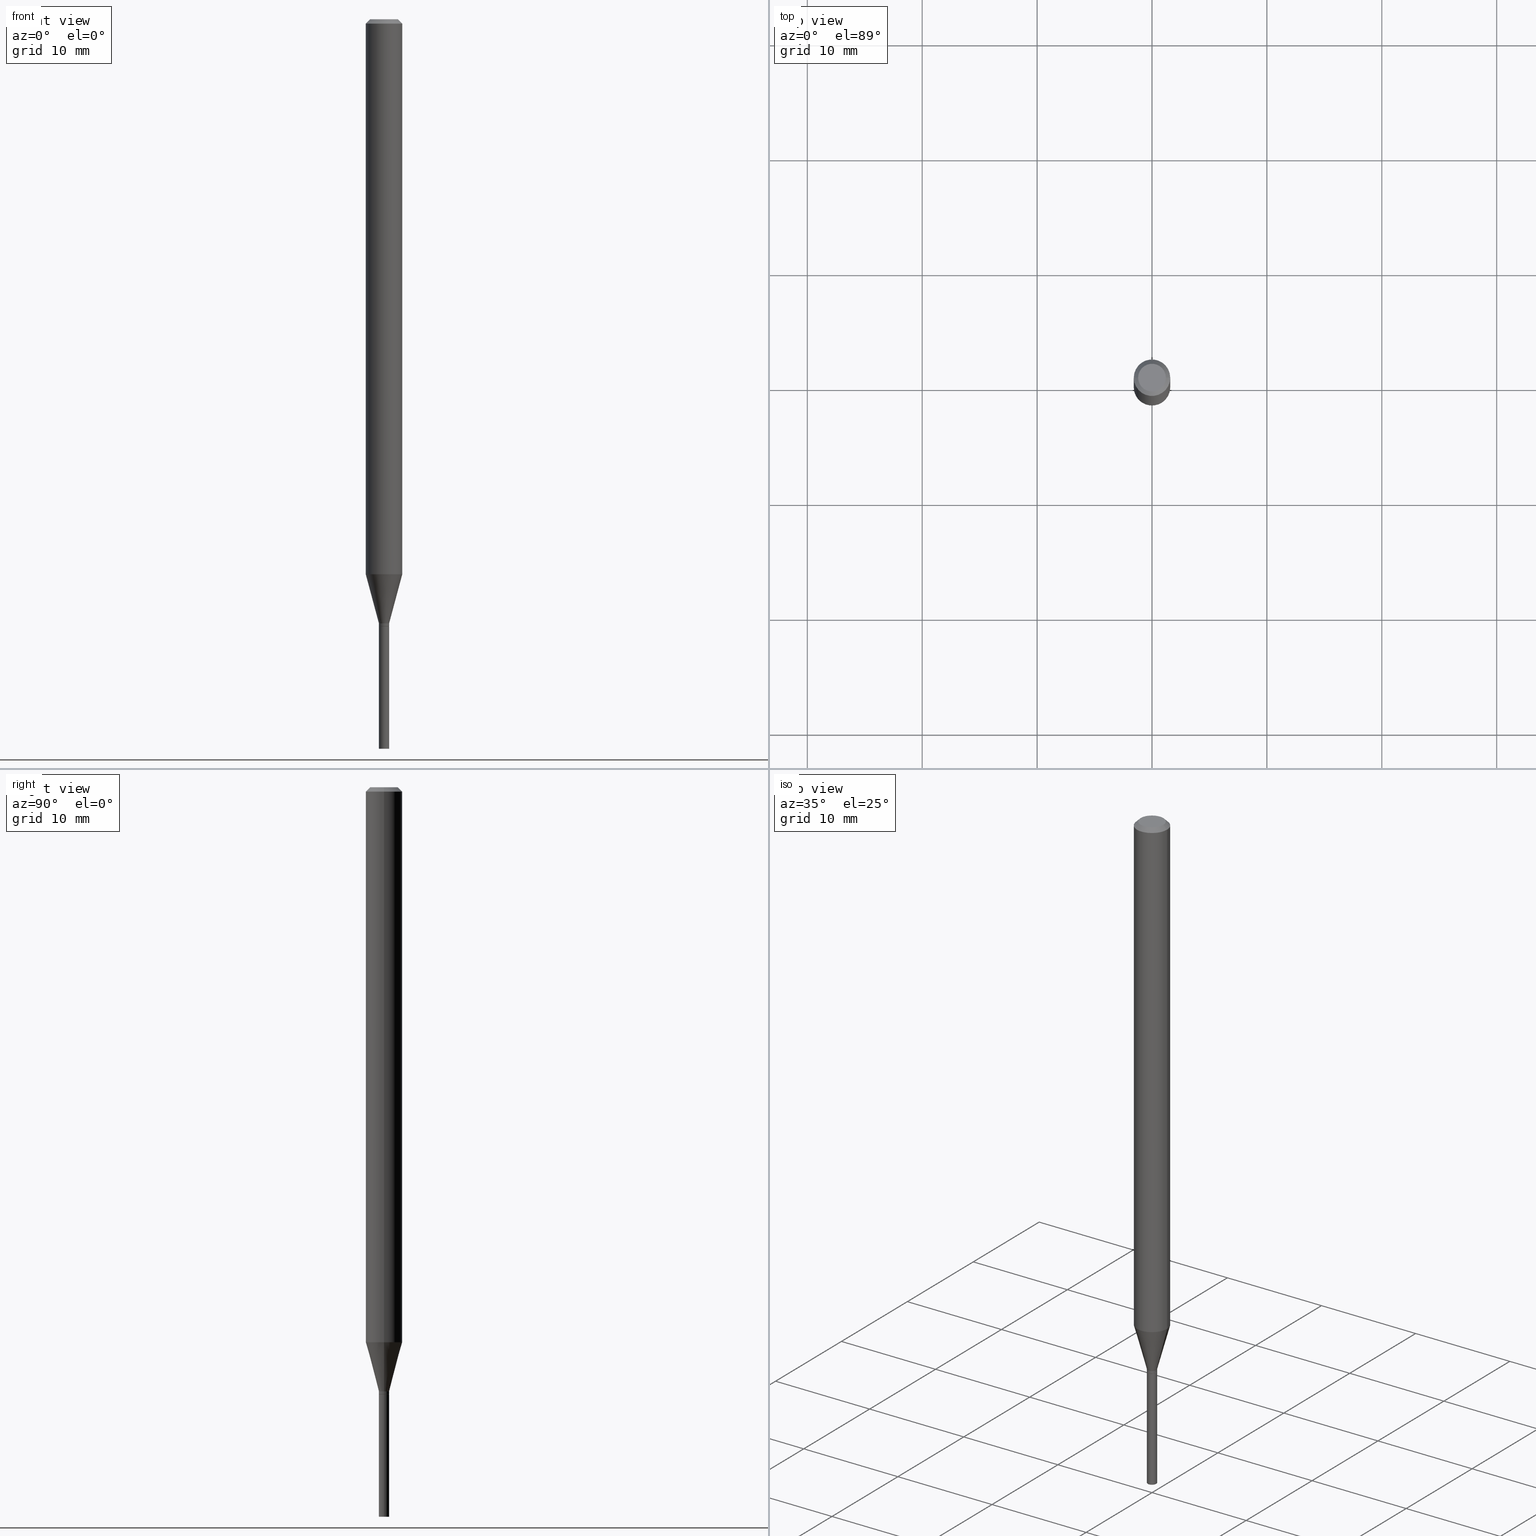
[diagram: canonical four-view strip — front | top / right | iso, engineering-drawing reading convention]
A machine part, canonical four-view strip (front | top / right | iso — engineering-drawing reading convention). The complete STEP part file that produces these views, byte-faithful:
ISO-10303-21;
HEADER;
FILE_DESCRIPTION (( 'STEP AP203' ),
    '1' );
FILE_NAME ('00644.STEP',
    '2024-03-19T22:16:15',
    ( '' ),
    ( '' ),
    'SwSTEP 2.0',
    'SolidWorks 2023',
    '' );
FILE_SCHEMA (( 'CONFIG_CONTROL_DESIGN' ));
ENDSEC;

DATA;
#1 = EDGE_CURVE ( 'NONE', #148, #100, #232, .T. ) ;
#2 = ORIENTED_EDGE ( 'NONE', *, *, #377, .T. ) ;
#3 = DIRECTION ( 'NONE',  ( -2.445468806185136597E-29, 3.491481338843145583E-15, 1.000000000000000000 ) ) ;
#4 = CIRCLE ( 'NONE', #77, 0.01700000000000000122 ) ;
#5 = PRODUCT_DEFINITION_FORMATION_WITH_SPECIFIED_SOURCE ( 'ANY', '', #347, .NOT_KNOWN. ) ;
#6 = ORIENTED_EDGE ( 'NONE', *, *, #300, .F. ) ;
#7 = ORIENTED_EDGE ( 'NONE', *, *, #96, .T. ) ;
#8 =( NAMED_UNIT ( * ) PLANE_ANGLE_UNIT ( ) SI_UNIT ( $, .RADIAN. ) );
#9 = EDGE_LOOP ( 'NONE', ( #336, #258, #212, #264 ) ) ;
#10 = EDGE_CURVE ( 'NONE', #443, #169, #34, .T. ) ;
#11 = DIRECTION ( 'NONE',  ( 1.000000000000000000, -6.982962677686266711E-15, 0.000000000000000000 ) ) ;
#12 = ORIENTED_EDGE ( 'NONE', *, *, #389, .F. ) ;
#13 = CC_DESIGN_PERSON_AND_ORGANIZATION_ASSIGNMENT ( #131, #192, ( #5 ) ) ;
#14 = CIRCLE ( 'NONE', #86, 0.06250000000000000000 ) ;
#15 = AXIS2_PLACEMENT_3D ( 'NONE', #328, #403, #43 ) ;
#16 = ADVANCED_FACE ( 'NONE', ( #334 ), #108, .T. ) ;
#17 = ORIENTED_EDGE ( 'NONE', *, *, #266, .T. ) ;
#18 = PERSON_AND_ORGANIZATION_ROLE ( 'design_owner' ) ;
#19 = DIRECTION ( 'NONE',  ( 0.2588190451025212391, 1.565188264969622362E-15, 0.9659258262890679791 ) ) ;
#20 = PERSON_AND_ORGANIZATION_ROLE ( 'classification_officer' ) ;
#21 = DIRECTION ( 'NONE',  ( -2.445468806185136597E-29, 3.491481338843145583E-15, 1.000000000000000000 ) ) ;
#22 = AXIS2_PLACEMENT_3D ( 'NONE', #162, #305, #227 ) ;
#23 = APPROVAL_ROLE ( '' ) ;
#24 = DIRECTION ( 'NONE',  ( -2.445468806185136597E-29, 3.491481338843145583E-15, 1.000000000000000000 ) ) ;
#25 = ADVANCED_FACE ( 'NONE', ( #350 ), #450, .F. ) ;
#26 = CARTESIAN_POINT ( 'NONE',  ( 0.04749999999999999362, -4.035134999187558409E-16, 1.123127311571382584E-15 ) ) ;
#27 = CARTESIAN_POINT ( 'NONE',  ( 3.668203209277705088E-31, -5.237222008264718399E-17, -0.01499999999999999944 ) ) ;
#28 = VECTOR ( 'NONE', #346, 39.37007874015748143 ) ;
#29 = DIRECTION ( 'NONE',  ( 1.000000000000000000, -6.982962677686280910E-15, 0.000000000000000000 ) ) ;
#30 = ORIENTED_EDGE ( 'NONE', *, *, #160, .F. ) ;
#31 = DIRECTION ( 'NONE',  ( -2.445468806185136877E-29, 3.491481338843145188E-15, 1.000000000000000000 ) ) ;
#32 = DIRECTION ( 'NONE',  ( -1.000000000000000000, 6.982962677686265922E-15, -4.876176775795935793E-29 ) ) ;
#33 = ORIENTED_EDGE ( 'NONE', *, *, #352, .F. ) ;
#34 = CIRCLE ( 'NONE', #209, 0.01749999999999992187 ) ;
#35 = LINE ( 'NONE', #460, #93 ) ;
#36 = ORIENTED_EDGE ( 'NONE', *, *, #382, .F. ) ;
#37 = CARTESIAN_POINT ( 'NONE',  ( 0.01749999999999992187, -7.349568218264821903E-15, -2.069999999999999840 ) ) ;
#38 = ORIENTED_EDGE ( 'NONE', *, *, #315, .F. ) ;
#39 = FACE_OUTER_BOUND ( 'NONE', #462, .T. ) ;
#40 = ORIENTED_EDGE ( 'NONE', *, *, #142, .F. ) ;
#41 = DIRECTION ( 'NONE',  ( 1.000000000000000000, -6.982962677686262766E-15, 0.000000000000000000 ) ) ;
#42 = ORIENTED_EDGE ( 'NONE', *, *, #382, .T. ) ;
#43 = DIRECTION ( 'NONE',  ( 1.000000000000000000, -6.982962677686274599E-15, 0.000000000000000000 ) ) ;
#44 = DIRECTION ( 'NONE',  ( 1.000000000000000000, -6.982962677686248567E-15, 0.000000000000000000 ) ) ;
#45 = CARTESIAN_POINT ( 'NONE',  ( 0.01749999999999992534, -7.382737290983831260E-15, -2.079500000000000348 ) ) ;
#46 = VERTEX_POINT ( 'NONE', #274 ) ;
#47 = COORDINATED_UNIVERSAL_TIME_OFFSET ( 5, 0, .BEHIND. ) ;
#48 = CIRCLE ( 'NONE', #387, 0.01749999999999992187 ) ;
#49 = DIRECTION ( 'NONE',  ( 1.000000000000000000, -6.982962677686280910E-15, 0.000000000000000000 ) ) ;
#50 = AXIS2_PLACEMENT_3D ( 'NONE', #71, #428, #280 ) ;
#51 = LOCAL_TIME ( 18, 16, 15.00000000000000000, #47 ) ;
#52 = DIRECTION ( 'NONE',  ( 1.000000000000000000, -6.982962677686280910E-15, 0.000000000000000000 ) ) ;
#53 = DATE_AND_TIME ( #310, #407 ) ;
#54 = CARTESIAN_POINT ( 'NONE',  ( -0.01749999999999992534, -7.136190465366304817E-15, -2.079500000000000348 ) ) ;
#55 = PRODUCT_DEFINITION_SHAPE ( 'NONE', 'NONE',  #281 ) ;
#56 = DIRECTION ( 'NONE',  ( -2.445468806185136597E-29, 3.491481338843145583E-15, 1.000000000000000000 ) ) ;
#57 = AXIS2_PLACEMENT_3D ( 'NONE', #175, #426, #322 ) ;
#58 = LOCAL_TIME ( 18, 16, 15.00000000000000000, #87 ) ;
#59 = EDGE_CURVE ( 'NONE', #180, #404, #338, .T. ) ;
#60 = CARTESIAN_POINT ( 'NONE',  ( 5.085352382461992755E-29, -7.260535444124322854E-15, -2.079500000000000348 ) ) ;
#61 = CARTESIAN_POINT ( 'NONE',  ( 5.086575116865084435E-29, -7.262281184793743569E-15, -2.080000000000000071 ) ) ;
#62 = EDGE_CURVE ( 'NONE', #169, #443, #48, .T. ) ;
#63 = CARTESIAN_POINT ( 'NONE',  ( 0.000000000000000000, 0.000000000000000000, 0.000000000000000000 ) ) ;
#64 = CIRCLE ( 'NONE', #354, 0.01750000000000000167 ) ;
#65 = FACE_OUTER_BOUND ( 'NONE', #447, .T. ) ;
#66 = APPROVAL ( #275, 'UNSPECIFIED' ) ;
#67 = CYLINDRICAL_SURFACE ( 'NONE', #50, 0.06250000000000000000 ) ;
#68 = ORIENTED_EDGE ( 'NONE', *, *, #10, .F. ) ;
#69 = CARTESIAN_POINT ( 'NONE',  ( 4.651422806317884527E-29, -6.640999012644456422E-15, -1.902057713659400573 ) ) ;
#70 = AXIS2_PLACEMENT_3D ( 'NONE', #433, #385, #318 ) ;
#71 = CARTESIAN_POINT ( 'NONE',  ( 0.000000000000000000, 0.000000000000000000, 0.000000000000000000 ) ) ;
#72 = LINE ( 'NONE', #220, #277 ) ;
#73 = ORIENTED_EDGE ( 'NONE', *, *, #89, .T. ) ;
#74 = LINE ( 'NONE', #368, #269 ) ;
#75 = VERTEX_POINT ( 'NONE', #230 ) ;
#76 = CARTESIAN_POINT ( 'NONE',  ( 0.000000000000000000, 0.000000000000000000, 0.000000000000000000 ) ) ;
#77 = AXIS2_PLACEMENT_3D ( 'NONE', #97, #324, #171 ) ;
#78 = CARTESIAN_POINT ( 'NONE',  ( 5.086575116865084435E-29, -7.262281184793743569E-15, -2.080000000000000071 ) ) ;
#79 = ORIENTED_EDGE ( 'NONE', *, *, #332, .T. ) ;
#80 = EDGE_CURVE ( 'NONE', #46, #221, #313, .T. ) ;
#81 = MECHANICAL_CONTEXT ( 'NONE', #133, 'mechanical' ) ;
#82 = ORIENTED_EDGE ( 'NONE', *, *, #332, .F. ) ;
#83 = EDGE_CURVE ( 'NONE', #261, #177, #64, .T. ) ;
#84 = PERSON_AND_ORGANIZATION_ROLE ( 'creator' ) ;
#85 = CARTESIAN_POINT ( 'NONE',  ( -0.01700000000000000122, -7.138839692540415229E-15, -2.080000000000000071 ) ) ;
#86 = AXIS2_PLACEMENT_3D ( 'NONE', #218, #440, #11 ) ;
#87 = COORDINATED_UNIVERSAL_TIME_OFFSET ( 5, 0, .BEHIND. ) ;
#88 = CARTESIAN_POINT ( 'NONE',  ( 5.086575116865084435E-29, -7.262281184793743569E-15, -2.080000000000000071 ) ) ;
#89 = EDGE_CURVE ( 'NONE', #404, #180, #251, .T. ) ;
#90 = CYLINDRICAL_SURFACE ( 'NONE', #138, 0.01749999999999992534 ) ;
#91 = PERSON_AND_ORGANIZATION ( #104, #252 ) ;
#92 = CARTESIAN_POINT ( 'NONE',  ( 0.01750000000000000167, -7.384483031653253552E-15, -2.080000000000000071 ) ) ;
#93 = VECTOR ( 'NONE', #31, 39.37007874015748143 ) ;
#94 = LOCAL_TIME ( 18, 16, 15.00000000000000000, #226 ) ;
#95 = CARTESIAN_POINT ( 'NONE',  ( -0.01750000000000000167, -7.871147287192785430E-15, -2.080000000000000071 ) ) ;
#96 = EDGE_CURVE ( 'NONE', #100, #148, #166, .T. ) ;
#97 = CARTESIAN_POINT ( 'NONE',  ( 5.086575116865084435E-29, -7.262281184793743569E-15, -2.080000000000000071 ) ) ;
#98 = EDGE_LOOP ( 'NONE', ( #82, #42, #295, #114 ) ) ;
#99 = DIRECTION ( 'NONE',  ( 1.000000000000000000, -6.982962677686265922E-15, 4.876176775795936353E-29 ) ) ;
#100 = VERTEX_POINT ( 'NONE', #95 ) ;
#101 = VECTOR ( 'NONE', #19, 39.37007874015748854 ) ;
#102 = DIRECTION ( 'NONE',  ( 2.445468806185136597E-29, -3.491481338843145583E-15, -1.000000000000000000 ) ) ;
#103 = FACE_OUTER_BOUND ( 'NONE', #239, .T. ) ;
#104 = PERSON ( 'UNSPECIFIED', 'UNSPECIFIED', 'UNSPECIFIED', ('UNSPECIFIED'), ('UNSPECIFIED'), ('UNSPECIFIED') ) ;
#105 = ORIENTED_EDGE ( 'NONE', *, *, #80, .F. ) ;
#106 = ADVANCED_FACE ( 'NONE', ( #351 ), #193, .T. ) ;
#107 = CARTESIAN_POINT ( 'NONE',  ( 5.062120428803232890E-29, -7.227366371405311920E-15, -2.069999999999999840 ) ) ;
#108 = CONICAL_SURFACE ( 'NONE', #395, 0.01749999999999992187, 0.2617993877991499629 ) ;
#109 = AXIS2_PLACEMENT_3D ( 'NONE', #27, #102, #203 ) ;
#110 =( NAMED_UNIT ( * ) SI_UNIT ( $, .STERADIAN. ) SOLID_ANGLE_UNIT ( ) );
#111 = ORIENTED_EDGE ( 'NONE', *, *, #10, .T. ) ;
#112 = DIRECTION ( 'NONE',  ( -2.445468806185136877E-29, 3.491481338843145188E-15, 1.000000000000000000 ) ) ;
#113 = UNCERTAINTY_MEASURE_WITH_UNIT (LENGTH_MEASURE( 1.000000000000000082E-05 ), #293, 'distance_accuracy_value', 'NONE');
#114 = ORIENTED_EDGE ( 'NONE', *, *, #96, .F. ) ;
#115 = CARTESIAN_POINT ( 'NONE',  ( 4.651422806317884527E-29, -6.640999012644456422E-15, -1.902057713659400573 ) ) ;
#116 = ORIENTED_EDGE ( 'NONE', *, *, #83, .T. ) ;
#117 = CYLINDRICAL_SURFACE ( 'NONE', #290, 0.01750000000000000167 ) ;
#118 = AXIS2_PLACEMENT_3D ( 'NONE', #360, #165, #32 ) ;
#119 = VERTEX_POINT ( 'NONE', #26 ) ;
#120 = DIRECTION ( 'NONE',  ( 0.000000000000000000, 0.000000000000000000, 1.000000000000000000 ) ) ;
#121 = EDGE_LOOP ( 'NONE', ( #111, #254, #6, #288 ) ) ;
#122 = DIRECTION ( 'NONE',  ( -2.445468806185136597E-29, 3.491481338843145583E-15, 1.000000000000000000 ) ) ;
#123 = COORDINATED_UNIVERSAL_TIME_OFFSET ( 5, 0, .BEHIND. ) ;
#124 = DIRECTION ( 'NONE',  ( -2.445468806185136597E-29, 3.491481338843145583E-15, 1.000000000000000000 ) ) ;
#125 = AXIS2_PLACEMENT_3D ( 'NONE', #69, #390, #238 ) ;
#126 = DATE_AND_TIME ( #371, #94 ) ;
#127 = DIRECTION ( 'NONE',  ( 2.438088387897960049E-29, -3.491481338843145188E-15, -1.000000000000000000 ) ) ;
#128 = DESIGN_CONTEXT ( 'detailed design', #284, 'design' ) ;
#129 = DIMENSIONAL_EXPONENTS ( 1.000000000000000000, 0.000000000000000000, 0.000000000000000000, 0.000000000000000000, 0.000000000000000000, 0.000000000000000000, 0.000000000000000000 ) ;
#130 = DIRECTION ( 'NONE',  ( -0.7071067811865211494, 2.468850131081980565E-15, -0.7071067811865738850 ) ) ;
#131 = PERSON_AND_ORGANIZATION ( #104, #252 ) ;
#132 = DIRECTION ( 'NONE',  ( 1.000000000000000000, -6.982962677686266711E-15, 4.876176775795935232E-29 ) ) ;
#133 = APPLICATION_CONTEXT ( 'configuration controlled 3d designs of mechanical parts and assemblies' ) ;
#134 = FACE_OUTER_BOUND ( 'NONE', #432, .T. ) ;
#135 = CARTESIAN_POINT ( 'NONE',  ( 6.198122052593289668E-29, -8.607766087339451973E-15, -2.500000000000000000 ) ) ;
#136 = VERTEX_POINT ( 'NONE', #85 ) ;
#137 = LINE ( 'NONE', #442, #379 ) ;
#138 = AXIS2_PLACEMENT_3D ( 'NONE', #422, #233, #132 ) ;
#139 = LINE ( 'NONE', #388, #306 ) ;
#140 = ADVANCED_FACE ( 'NONE', ( #425 ), #201, .T. ) ;
#141 = CARTESIAN_POINT ( 'NONE',  ( 0.06250000000000000000, -4.811533449433679005E-16, -0.01499999999999999944 ) ) ;
#142 = EDGE_CURVE ( 'NONE', #46, #119, #445, .T. ) ;
#143 = EDGE_LOOP ( 'NONE', ( #33, #189, #330, #151 ) ) ;
#144 = CIRCLE ( 'NONE', #159, 0.04749999999999999362 ) ;
#145 = DIRECTION ( 'NONE',  ( -2.445468806185136877E-29, 3.491481338843145188E-15, 1.000000000000000000 ) ) ;
#146 = ORIENTED_EDGE ( 'NONE', *, *, #186, .T. ) ;
#147 = CARTESIAN_POINT ( 'NONE',  ( 0.000000000000000000, 0.000000000000000000, 0.000000000000000000 ) ) ;
#148 = VERTEX_POINT ( 'NONE', #92 ) ;
#149 = CARTESIAN_POINT ( 'NONE',  ( 5.062120428803232890E-29, -7.227366371405311920E-15, -2.069999999999999840 ) ) ;
#150 = VECTOR ( 'NONE', #206, 39.37007874015748143 ) ;
#151 = ORIENTED_EDGE ( 'NONE', *, *, #204, .F. ) ;
#152 = DIRECTION ( 'NONE',  ( 1.000000000000000000, -6.982962677686267499E-15, 5.108144071313017768E-29 ) ) ;
#153 = PERSON_AND_ORGANIZATION ( #104, #252 ) ;
#154 = FACE_OUTER_BOUND ( 'NONE', #372, .T. ) ;
#155 = EDGE_CURVE ( 'NONE', #261, #148, #229, .T. ) ;
#156 = DATE_AND_TIME ( #348, #51 ) ;
#157 = CLOSED_SHELL ( 'NONE', ( #223, #181, #337, #309 ) ) ;
#158 = DIRECTION ( 'NONE',  ( -2.445468806185136597E-29, 3.491481338843145583E-15, 1.000000000000000000 ) ) ;
#159 = AXIS2_PLACEMENT_3D ( 'NONE', #376, #122, #311 ) ;
#160 = EDGE_CURVE ( 'NONE', #119, #46, #144, .T. ) ;
#161 = APPROVAL_STATUS ( 'not_yet_approved' ) ;
#162 = CARTESIAN_POINT ( 'NONE',  ( 0.000000000000000000, 0.000000000000000000, 0.000000000000000000 ) ) ;
#163 = DATE_AND_TIME ( #228, #297 ) ;
#164 = CARTESIAN_POINT ( 'NONE',  ( 0.01750000000000000167, -1.222018468595096625E-16, 8.533309357642889039E-31 ) ) ;
#165 = DIRECTION ( 'NONE',  ( 2.438088387897960049E-29, -3.491481338843145188E-15, -1.000000000000000000 ) ) ;
#166 = CIRCLE ( 'NONE', #424, 0.01750000000000000167 ) ;
#167 = ADVANCED_FACE ( 'NONE', ( #199 ), #90, .T. ) ;
#168 = CYLINDRICAL_SURFACE ( 'NONE', #234, 0.01750000000000000167 ) ;
#169 = VERTEX_POINT ( 'NONE', #276 ) ;
#170 = CYLINDRICAL_SURFACE ( 'NONE', #57, 0.06250000000000000000 ) ;
#171 = DIRECTION ( 'NONE',  ( 1.000000000000000000, -6.982962677686274599E-15, 0.000000000000000000 ) ) ;
#172 = ORIENTED_EDGE ( 'NONE', *, *, #155, .F. ) ;
#173 = VECTOR ( 'NONE', #362, 39.37007874015748854 ) ;
#174 = APPROVAL_PERSON_ORGANIZATION ( #455, #205, #23 ) ;
#175 = CARTESIAN_POINT ( 'NONE',  ( 0.000000000000000000, 0.000000000000000000, 0.000000000000000000 ) ) ;
#176 = ADVANCED_FACE ( 'NONE', ( #154 ), #384, .F. ) ;
#177 = VERTEX_POINT ( 'NONE', #412 ) ;
#178 = EDGE_CURVE ( 'NONE', #443, #185, #191, .T. ) ;
#179 = CARTESIAN_POINT ( 'NONE',  ( 6.113672015462842613E-29, -8.728703347107864943E-15, -2.500000000000000000 ) ) ;
#180 = VERTEX_POINT ( 'NONE', #54 ) ;
#181 = ADVANCED_FACE ( 'NONE', ( #283 ), #282, .F. ) ;
#182 = ORIENTED_EDGE ( 'NONE', *, *, #62, .F. ) ;
#183 = CARTESIAN_POINT ( 'NONE',  ( 5.062120428803232890E-29, -7.227366371405311920E-15, -2.069999999999999840 ) ) ;
#184 = LENGTH_MEASURE_WITH_UNIT ( LENGTH_MEASURE( 0.02539999999999999897 ), #257 );
#185 = VERTEX_POINT ( 'NONE', #320 ) ;
#186 = EDGE_CURVE ( 'NONE', #119, #331, #327, .T. ) ;
#187 = AXIS2_PLACEMENT_3D ( 'NONE', #457, #127, #197 ) ;
#188 = SHAPE_DEFINITION_REPRESENTATION ( #55, #413 ) ;
#189 = ORIENTED_EDGE ( 'NONE', *, *, #434, .T. ) ;
#190 = APPROVAL ( #161, 'UNSPECIFIED' ) ;
#191 = LINE ( 'NONE', #344, #101 ) ;
#192 = PERSON_AND_ORGANIZATION_ROLE ( 'design_supplier' ) ;
#193 = CYLINDRICAL_SURFACE ( 'NONE', #22, 0.01749999999999992534 ) ;
#194 = DATE_TIME_ROLE ( 'classification_date' ) ;
#195 = CARTESIAN_POINT ( 'NONE',  ( -2.746572805822384744E-44, 3.921378049496544864E-30, 1.123127311571380021E-15 ) ) ;
#196 = ADVANCED_FACE ( 'NONE', ( #245 ), #396, .T. ) ;
#197 = DIRECTION ( 'NONE',  ( -1.000000000000000000, 6.982962677686265922E-15, -4.876176775795935793E-29 ) ) ;
#198 = ADVANCED_FACE ( 'NONE', ( #464 ), #67, .T. ) ;
#199 = FACE_OUTER_BOUND ( 'NONE', #359, .T. ) ;
#200 = FACE_OUTER_BOUND ( 'NONE', #299, .T. ) ;
#201 = CONICAL_SURFACE ( 'NONE', #250, 0.01700000000000000122, 0.7853981633974718157 ) ;
#202 =( GEOMETRIC_REPRESENTATION_CONTEXT ( 3 ) GLOBAL_UNCERTAINTY_ASSIGNED_CONTEXT ( ( #113 ) ) GLOBAL_UNIT_ASSIGNED_CONTEXT ( ( #293, #8, #110 ) ) REPRESENTATION_CONTEXT ( 'NONE', 'WORKASPACE' ) );
#203 = DIRECTION ( 'NONE',  ( -1.000000000000000000, 6.982962677686266711E-15, 0.000000000000000000 ) ) ;
#204 = EDGE_CURVE ( 'NONE', #221, #331, #259, .T. ) ;
#205 = APPROVAL ( #231, 'UNSPECIFIED' ) ;
#206 = DIRECTION ( 'NONE',  ( -0.7071067811865642261, 7.493145998870414114E-15, 0.7071067811865309194 ) ) ;
#207 = CC_DESIGN_PERSON_AND_ORGANIZATION_ASSIGNMENT ( #153, #84, ( #5 ) ) ;
#208 = PLANE ( 'NONE',  #118 ) ;
#209 = AXIS2_PLACEMENT_3D ( 'NONE', #183, #410, #49 ) ;
#210 = AXIS2_PLACEMENT_3D ( 'NONE', #179, #291, #333 ) ;
#211 = DIRECTION ( 'NONE',  ( -1.000000000000000000, 6.982962677686266711E-15, 0.000000000000000000 ) ) ;
#212 = ORIENTED_EDGE ( 'NONE', *, *, #178, .T. ) ;
#213 = DIRECTION ( 'NONE',  ( 0.7071067811865642261, -2.468850131082431399E-15, 0.7071067811865309194 ) ) ;
#214 = EDGE_LOOP ( 'NONE', ( #116, #79, #289, #172 ) ) ;
#215 = CARTESIAN_POINT ( 'NONE',  ( 5.086575116865084435E-29, -7.262281184793743569E-15, -2.080000000000000071 ) ) ;
#216 = ORIENTED_EDGE ( 'NONE', *, *, #377, .F. ) ;
#217 = AXIS2_PLACEMENT_3D ( 'NONE', #391, #287, #211 ) ;
#218 = CARTESIAN_POINT ( 'NONE',  ( 3.668203209277705088E-31, -5.237222008264718399E-17, -0.01499999999999999944 ) ) ;
#219 = DIRECTION ( 'NONE',  ( -2.445468806185136597E-29, 3.491481338843145583E-15, 1.000000000000000000 ) ) ;
#220 = CARTESIAN_POINT ( 'NONE',  ( 0.01700000000000000122, -7.380991550314410545E-15, -2.080000000000000071 ) ) ;
#221 = VERTEX_POINT ( 'NONE', #358 ) ;
#222 = APPROVAL_DATE_TIME ( #163, #205 ) ;
#223 = ADVANCED_FACE ( 'NONE', ( #461 ), #168, .T. ) ;
#224 = ORIENTED_EDGE ( 'NONE', *, *, #386, .F. ) ;
#225 = VECTOR ( 'NONE', #145, 39.37007874015748143 ) ;
#226 = COORDINATED_UNIVERSAL_TIME_OFFSET ( 5, 0, .BEHIND. ) ;
#227 = DIRECTION ( 'NONE',  ( 1.000000000000000000, -6.982962677686266711E-15, 4.876176775795935232E-29 ) ) ;
#228 = CALENDAR_DATE ( 2024, 19, 3 ) ;
#229 = LINE ( 'NONE', #164, #28 ) ;
#230 = CARTESIAN_POINT ( 'NONE',  ( 0.01700000000000000122, -7.380991550314410545E-15, -2.080000000000000071 ) ) ;
#231 = APPROVAL_STATUS ( 'not_yet_approved' ) ;
#232 = CIRCLE ( 'NONE', #392, 0.01750000000000000167 ) ;
#233 = DIRECTION ( 'NONE',  ( -2.445468806185136597E-29, 3.491481338843145583E-15, 1.000000000000000000 ) ) ;
#234 = AXIS2_PLACEMENT_3D ( 'NONE', #63, #248, #99 ) ;
#235 = CC_DESIGN_SECURITY_CLASSIFICATION ( #398, ( #5 ) ) ;
#236 = PRODUCT_RELATED_PRODUCT_CATEGORY ( 'detail', '', ( #347 ) ) ;
#237 = CARTESIAN_POINT ( 'NONE',  ( 5.086575116865084435E-29, -7.262281184793743569E-15, -2.080000000000000071 ) ) ;
#238 = DIRECTION ( 'NONE',  ( 1.000000000000000000, -6.982962677686262766E-15, 0.000000000000000000 ) ) ;
#239 = EDGE_LOOP ( 'NONE', ( #30, #146, #437, #105 ) ) ;
#240 = CARTESIAN_POINT ( 'NONE',  ( 0.01750000000000000167, -8.850905193967374926E-15, -2.500000000000000000 ) ) ;
#241 = CONICAL_SURFACE ( 'NONE', #15, 0.01700000000000000122, 0.7853981633974718157 ) ;
#242 = AXIS2_PLACEMENT_3D ( 'NONE', #115, #401, #41 ) ;
#243 = CARTESIAN_POINT ( 'NONE',  ( -0.01700000000000000122, -7.141488919714527219E-15, -2.080000000000000071 ) ) ;
#244 = ORIENTED_EDGE ( 'NONE', *, *, #204, .T. ) ;
#245 = FACE_OUTER_BOUND ( 'NONE', #121, .T. ) ;
#246 = ADVANCED_FACE ( 'NONE', ( #200 ), #316, .T. ) ;
#247 = VERTEX_POINT ( 'NONE', #436 ) ;
#248 = DIRECTION ( 'NONE',  ( -2.445468806185136597E-29, 3.491481338843145583E-15, 1.000000000000000000 ) ) ;
#249 = AXIS2_PLACEMENT_3D ( 'NONE', #60, #124, #456 ) ;
#250 = AXIS2_PLACEMENT_3D ( 'NONE', #237, #158, #267 ) ;
#251 = CIRCLE ( 'NONE', #339, 0.01749999999999992534 ) ;
#252 = ORGANIZATION ( 'UNSPECIFIED', 'UNSPECIFIED', '' ) ;
#253 = FACE_OUTER_BOUND ( 'NONE', #98, .T. ) ;
#254 = ORIENTED_EDGE ( 'NONE', *, *, #417, .T. ) ;
#255 = LINE ( 'NONE', #363, #173 ) ;
#256 = ORIENTED_EDGE ( 'NONE', *, *, #389, .T. ) ;
#257 =( LENGTH_UNIT ( ) NAMED_UNIT ( * ) SI_UNIT ( $, .METRE. ) );
#258 = ORIENTED_EDGE ( 'NONE', *, *, #62, .T. ) ;
#259 = CIRCLE ( 'NONE', #70, 0.06250000000000000000 ) ;
#260 = DIRECTION ( 'NONE',  ( -2.445468806185136877E-29, 3.491481338843145188E-15, 1.000000000000000000 ) ) ;
#261 = VERTEX_POINT ( 'NONE', #240 ) ;
#262 = EDGE_CURVE ( 'NONE', #404, #443, #139, .T. ) ;
#263 = DIRECTION ( 'NONE',  ( -2.445468806185136597E-29, 3.491481338843145583E-15, 1.000000000000000000 ) ) ;
#264 = ORIENTED_EDGE ( 'NONE', *, *, #434, .F. ) ;
#265 = PERSON_AND_ORGANIZATION ( #104, #252 ) ;
#266 = EDGE_CURVE ( 'NONE', #75, #136, #4, .T. ) ;
#267 = DIRECTION ( 'NONE',  ( 1.000000000000000000, -6.982962677686274599E-15, 0.000000000000000000 ) ) ;
#268 = ADVANCED_FACE ( 'NONE', ( #103 ), #373, .T. ) ;
#269 = VECTOR ( 'NONE', #112, 39.37007874015748143 ) ;
#270 = CARTESIAN_POINT ( 'NONE',  ( 6.113672015462842613E-29, -8.728703347107864943E-15, -2.500000000000000000 ) ) ;
#271 = PERSON_AND_ORGANIZATION ( #104, #252 ) ;
#272 = DIRECTION ( 'NONE',  ( 1.000000000000000000, -6.982962677686248567E-15, 0.000000000000000000 ) ) ;
#273 = CALENDAR_DATE ( 2024, 19, 3 ) ;
#274 = CARTESIAN_POINT ( 'NONE',  ( -0.04749999999999999362, 3.578768372314230227E-16, 1.123127311571377654E-15 ) ) ;
#275 = APPROVAL_STATUS ( 'not_yet_approved' ) ;
#276 = CARTESIAN_POINT ( 'NONE',  ( -0.01749999999999992187, -6.649965597720844633E-15, -2.069999999999999840 ) ) ;
#277 = VECTOR ( 'NONE', #213, 39.37007874015748143 ) ;
#278 = APPROVAL_PERSON_ORGANIZATION ( #91, #66, #375 ) ;
#279 = CC_DESIGN_PERSON_AND_ORGANIZATION_ASSIGNMENT ( #312, #20, ( #398 ) ) ;
#280 = DIRECTION ( 'NONE',  ( 1.000000000000000000, -6.982962677686266711E-15, 4.876176775795935793E-29 ) ) ;
#281 = PRODUCT_DEFINITION ( 'UNKNOWN', '', #5, #128 ) ;
#282 = PLANE ( 'NONE',  #414 ) ;
#283 = FACE_OUTER_BOUND ( 'NONE', #364, .T. ) ;
#284 = APPLICATION_CONTEXT ( 'configuration controlled 3d designs of mechanical parts and assemblies' ) ;
#285 = DIRECTION ( 'NONE',  ( 1.000000000000000000, -6.982962677686265922E-15, 4.876176775795935793E-29 ) ) ;
#286 = ORIENTED_EDGE ( 'NONE', *, *, #142, .T. ) ;
#287 = DIRECTION ( 'NONE',  ( 2.445468806185136597E-29, -3.491481338843145583E-15, -1.000000000000000000 ) ) ;
#288 = ORIENTED_EDGE ( 'NONE', *, *, #178, .F. ) ;
#289 = ORIENTED_EDGE ( 'NONE', *, *, #1, .F. ) ;
#290 = AXIS2_PLACEMENT_3D ( 'NONE', #76, #3, #335 ) ;
#291 = DIRECTION ( 'NONE',  ( -2.445468806185136597E-29, 3.491481338843145583E-15, 1.000000000000000000 ) ) ;
#292 = ORIENTED_EDGE ( 'NONE', *, *, #386, .T. ) ;
#293 =( CONVERSION_BASED_UNIT ( 'INCH', #184 ) LENGTH_UNIT ( ) NAMED_UNIT ( #129 ) );
#294 = ORIENTED_EDGE ( 'NONE', *, *, #89, .F. ) ;
#295 = ORIENTED_EDGE ( 'NONE', *, *, #155, .T. ) ;
#296 = AXIS2_PLACEMENT_3D ( 'NONE', #215, #263, #365 ) ;
#297 = LOCAL_TIME ( 18, 16, 15.00000000000000000, #411 ) ;
#298 = APPLICATION_PROTOCOL_DEFINITION ( 'international standard', 'config_control_design', 1994, #133 ) ;
#299 = EDGE_LOOP ( 'NONE', ( #427, #40, #366, #244 ) ) ;
#300 = EDGE_CURVE ( 'NONE', #185, #247, #406, .T. ) ;
#301 = CC_DESIGN_PERSON_AND_ORGANIZATION_ASSIGNMENT ( #416, #18, ( #347 ) ) ;
#302 = CARTESIAN_POINT ( 'NONE',  ( -0.06250000000000000000, 3.840629472727444916E-16, -0.01499999999999999944 ) ) ;
#303 = CC_DESIGN_DATE_AND_TIME_ASSIGNMENT ( #53, #453, ( #281 ) ) ;
#304 = APPLICATION_PROTOCOL_DEFINITION ( 'international standard', 'config_control_design', 1994, #284 ) ;
#305 = DIRECTION ( 'NONE',  ( -2.445468806185136597E-29, 3.491481338843145583E-15, 1.000000000000000000 ) ) ;
#306 = VECTOR ( 'NONE', #393, 39.37007874015748143 ) ;
#307 = CC_DESIGN_APPROVAL ( #190, ( #398 ) ) ;
#308 = DIRECTION ( 'NONE',  ( 1.000000000000000000, -6.982962677686280910E-15, 0.000000000000000000 ) ) ;
#309 = ADVANCED_FACE ( 'NONE', ( #65 ), #208, .F. ) ;
#310 = CALENDAR_DATE ( 2024, 19, 3 ) ;
#311 = DIRECTION ( 'NONE',  ( 1.000000000000000000, -6.982962677686267499E-15, 5.108144071313017768E-29 ) ) ;
#312 = PERSON_AND_ORGANIZATION ( #104, #252 ) ;
#313 = LINE ( 'NONE', #302, #458 ) ;
#314 = CC_DESIGN_DATE_AND_TIME_ASSIGNMENT ( #126, #194, ( #398 ) ) ;
#315 = EDGE_CURVE ( 'NONE', #185, #331, #35, .T. ) ;
#316 = CONICAL_SURFACE ( 'NONE', #109, 0.06250000000000000000, 0.7853981633974109755 ) ;
#317 = ADVANCED_FACE ( 'NONE', ( #134 ), #170, .T. ) ;
#318 = DIRECTION ( 'NONE',  ( 1.000000000000000000, -6.982962677686266711E-15, 0.000000000000000000 ) ) ;
#319 = APPROVAL_PERSON_ORGANIZATION ( #271, #190, #380 ) ;
#320 = CARTESIAN_POINT ( 'NONE',  ( 0.06250000000000001388, -7.077434179999848880E-15, -1.902057713659400573 ) ) ;
#321 = ORIENTED_EDGE ( 'NONE', *, *, #1, .T. ) ;
#322 = DIRECTION ( 'NONE',  ( 1.000000000000000000, -6.982962677686266711E-15, 4.876176775795935793E-29 ) ) ;
#323 = EDGE_CURVE ( 'NONE', #136, #180, #466, .T. ) ;
#324 = DIRECTION ( 'NONE',  ( -2.445468806185136597E-29, 3.491481338843145583E-15, 1.000000000000000000 ) ) ;
#325 = CIRCLE ( 'NONE', #210, 0.01750000000000000167 ) ;
#326 = ORIENTED_EDGE ( 'NONE', *, *, #323, .F. ) ;
#327 = LINE ( 'NONE', #141, #459 ) ;
#328 = CARTESIAN_POINT ( 'NONE',  ( 5.086575116865084435E-29, -7.262281184793743569E-15, -2.080000000000000071 ) ) ;
#329 = EDGE_LOOP ( 'NONE', ( #286, #429 ) ) ;
#330 = ORIENTED_EDGE ( 'NONE', *, *, #315, .T. ) ;
#331 = VERTEX_POINT ( 'NONE', #463 ) ;
#332 = EDGE_CURVE ( 'NONE', #177, #100, #137, .T. ) ;
#333 = DIRECTION ( 'NONE',  ( 1.000000000000000000, -6.982962677686303787E-15, 0.000000000000000000 ) ) ;
#334 = FACE_OUTER_BOUND ( 'NONE', #9, .T. ) ;
#335 = DIRECTION ( 'NONE',  ( 1.000000000000000000, -6.982962677686265922E-15, 4.876176775795936353E-29 ) ) ;
#336 = ORIENTED_EDGE ( 'NONE', *, *, #417, .F. ) ;
#337 = ADVANCED_FACE ( 'NONE', ( #253 ), #117, .T. ) ;
#338 = CIRCLE ( 'NONE', #249, 0.01749999999999992534 ) ;
#339 = AXIS2_PLACEMENT_3D ( 'NONE', #381, #24, #418 ) ;
#340 = CC_DESIGN_APPROVAL ( #205, ( #281 ) ) ;
#341 = DATE_AND_TIME ( #273, #58 ) ;
#342 = DIRECTION ( 'NONE',  ( -2.445468806185136597E-29, 3.491481338843145583E-15, 1.000000000000000000 ) ) ;
#343 = APPROVAL_DATE_TIME ( #341, #66 ) ;
#344 = CARTESIAN_POINT ( 'NONE',  ( 0.01749999999999992187, -7.349568218264821903E-15, -2.069999999999999840 ) ) ;
#345 = SECURITY_CLASSIFICATION_LEVEL ( 'unclassified' ) ;
#346 = DIRECTION ( 'NONE',  ( -2.445468806185136877E-29, 3.491481338843145188E-15, 1.000000000000000000 ) ) ;
#347 = PRODUCT ( '00644', '00644', '', ( #81 ) ) ;
#348 = CALENDAR_DATE ( 2024, 19, 3 ) ;
#349 = CC_DESIGN_PERSON_AND_ORGANIZATION_ASSIGNMENT ( #265, #449, ( #281 ) ) ;
#350 = FACE_OUTER_BOUND ( 'NONE', #329, .T. ) ;
#351 = FACE_OUTER_BOUND ( 'NONE', #435, .T. ) ;
#352 = EDGE_CURVE ( 'NONE', #247, #221, #399, .T. ) ;
#353 = DIRECTION ( 'NONE',  ( -2.438088387897960049E-29, 3.491481338843145188E-15, 1.000000000000000000 ) ) ;
#354 = AXIS2_PLACEMENT_3D ( 'NONE', #270, #21, #423 ) ;
#355 = DIRECTION ( 'NONE',  ( -2.445468806185136597E-29, 3.491481338843145583E-15, 1.000000000000000000 ) ) ;
#356 = ORIENTED_EDGE ( 'NONE', *, *, #59, .F. ) ;
#357 = DIRECTION ( 'NONE',  ( -2.438088387897960049E-29, 3.491481338843145188E-15, 1.000000000000000000 ) ) ;
#358 = CARTESIAN_POINT ( 'NONE',  ( -0.06250000000000000000, -2.902596406513489332E-15, -0.01499999999999999944 ) ) ;
#359 = EDGE_LOOP ( 'NONE', ( #73, #292, #68, #369 ) ) ;
#360 = CARTESIAN_POINT ( 'NONE',  ( 1.222018468595605194E-16, 0.01749999999999273664, -2.080000000000000071 ) ) ;
#361 = AXIS2_PLACEMENT_3D ( 'NONE', #61, #353, #448 ) ;
#362 = DIRECTION ( 'NONE',  ( -0.2588190451025212391, 5.211531920934549464E-15, 0.9659258262890679791 ) ) ;
#363 = CARTESIAN_POINT ( 'NONE',  ( -0.01749999999999992187, -7.103021392647295460E-15, -2.069999999999999840 ) ) ;
#364 = EDGE_LOOP ( 'NONE', ( #397, #36 ) ) ;
#365 = DIRECTION ( 'NONE',  ( 1.000000000000000000, -6.982962677686274599E-15, 0.000000000000000000 ) ) ;
#366 = ORIENTED_EDGE ( 'NONE', *, *, #80, .T. ) ;
#367 = AXIS2_PLACEMENT_3D ( 'NONE', #195, #374, #152 ) ;
#368 = CARTESIAN_POINT ( 'NONE',  ( -0.01749999999999992534, 1.243449787580170020E-16, -8.608136407946047003E-31 ) ) ;
#369 = ORIENTED_EDGE ( 'NONE', *, *, #262, .F. ) ;
#370 = ORIENTED_EDGE ( 'NONE', *, *, #262, .T. ) ;
#371 = CALENDAR_DATE ( 2024, 19, 3 ) ;
#372 = EDGE_LOOP ( 'NONE', ( #465, #216 ) ) ;
#373 = CONICAL_SURFACE ( 'NONE', #217, 0.06250000000000000000, 0.7853981633974109755 ) ;
#374 = DIRECTION ( 'NONE',  ( -2.445468806185136597E-29, 3.491481338843145583E-15, 1.000000000000000000 ) ) ;
#375 = APPROVAL_ROLE ( '' ) ;
#376 = CARTESIAN_POINT ( 'NONE',  ( -2.746572805822384744E-44, 3.921378049496544864E-30, 1.123127311571380021E-15 ) ) ;
#377 = EDGE_CURVE ( 'NONE', #136, #75, #451, .T. ) ;
#378 = CARTESIAN_POINT ( 'NONE',  ( 5.062120428803232890E-29, -7.227366371405311920E-15, -2.069999999999999840 ) ) ;
#379 = VECTOR ( 'NONE', #260, 39.37007874015748143 ) ;
#380 = APPROVAL_ROLE ( '' ) ;
#381 = CARTESIAN_POINT ( 'NONE',  ( 5.085352382461992755E-29, -7.260535444124322854E-15, -2.079500000000000348 ) ) ;
#382 = EDGE_CURVE ( 'NONE', #177, #261, #325, .T. ) ;
#383 = EDGE_CURVE ( 'NONE', #331, #221, #14, .T. ) ;
#384 = PLANE ( 'NONE',  #361 ) ;
#385 = DIRECTION ( 'NONE',  ( -2.445468806185136597E-29, 3.491481338843145583E-15, 1.000000000000000000 ) ) ;
#386 = EDGE_CURVE ( 'NONE', #180, #169, #74, .T. ) ;
#387 = AXIS2_PLACEMENT_3D ( 'NONE', #378, #454, #52 ) ;
#388 = CARTESIAN_POINT ( 'NONE',  ( 0.01749999999999992534, -1.222018468595091448E-16, 8.533309357642850503E-31 ) ) ;
#389 = EDGE_CURVE ( 'NONE', #75, #404, #72, .T. ) ;
#390 = DIRECTION ( 'NONE',  ( -2.445468806185136597E-29, 3.491481338843145583E-15, 1.000000000000000000 ) ) ;
#391 = CARTESIAN_POINT ( 'NONE',  ( 3.668203209277705088E-31, -5.237222008264718399E-17, -0.01499999999999999944 ) ) ;
#392 = AXIS2_PLACEMENT_3D ( 'NONE', #78, #219, #44 ) ;
#393 = DIRECTION ( 'NONE',  ( -2.445468806185136877E-29, 3.491481338843145188E-15, 1.000000000000000000 ) ) ;
#394 = ADVANCED_FACE ( 'NONE', ( #39 ), #241, .T. ) ;
#395 = AXIS2_PLACEMENT_3D ( 'NONE', #149, #342, #308 ) ;
#396 = CONICAL_SURFACE ( 'NONE', #430, 0.01749999999999992187, 0.2617993877991499629 ) ;
#397 = ORIENTED_EDGE ( 'NONE', *, *, #83, .F. ) ;
#398 = SECURITY_CLASSIFICATION ( '', '', #345 ) ;
#399 = LINE ( 'NONE', #438, #225 ) ;
#400 = EDGE_LOOP ( 'NONE', ( #17, #441, #294, #12 ) ) ;
#401 = DIRECTION ( 'NONE',  ( -2.445468806185136597E-29, 3.491481338843145583E-15, 1.000000000000000000 ) ) ;
#402 = ORIENTED_EDGE ( 'NONE', *, *, #352, .T. ) ;
#403 = DIRECTION ( 'NONE',  ( -2.445468806185136597E-29, 3.491481338843145583E-15, 1.000000000000000000 ) ) ;
#404 = VERTEX_POINT ( 'NONE', #45 ) ;
#405 = CLOSED_SHELL ( 'NONE', ( #167, #140, #268, #317, #196, #16, #198, #246, #25, #176, #394, #106 ) ) ;
#406 = CIRCLE ( 'NONE', #125, 0.06250000000000000000 ) ;
#407 = LOCAL_TIME ( 18, 16, 15.00000000000000000, #123 ) ;
#408 = ORIENTED_EDGE ( 'NONE', *, *, #300, .T. ) ;
#409 = DIRECTION ( 'NONE',  ( 1.000000000000000000, 0.000000000000000000, 0.000000000000000000 ) ) ;
#410 = DIRECTION ( 'NONE',  ( -2.445468806185136597E-29, 3.491481338843145583E-15, 1.000000000000000000 ) ) ;
#411 = COORDINATED_UNIVERSAL_TIME_OFFSET ( 5, 0, .BEHIND. ) ;
#412 = CARTESIAN_POINT ( 'NONE',  ( -0.01750000000000000167, -7.871147287192785430E-15, -2.500000000000000000 ) ) ;
#413 = ADVANCED_BREP_SHAPE_REPRESENTATION ( '00644', ( #420, #419, #415 ), #202 ) ;
#414 = AXIS2_PLACEMENT_3D ( 'NONE', #135, #357, #285 ) ;
#415 = AXIS2_PLACEMENT_3D ( 'NONE', #147, #120, #409 ) ;
#416 = PERSON_AND_ORGANIZATION ( #104, #252 ) ;
#417 = EDGE_CURVE ( 'NONE', #169, #247, #255, .T. ) ;
#418 = DIRECTION ( 'NONE',  ( 1.000000000000000000, -6.982962677686279332E-15, 0.000000000000000000 ) ) ;
#419 = MANIFOLD_SOLID_BREP ( 'Body-Move/Copy2[2]', #405 ) ;
#420 = MANIFOLD_SOLID_BREP ( 'Body-Move/Copy2[1]', #157 ) ;
#421 = APPROVAL_DATE_TIME ( #156, #190 ) ;
#422 = CARTESIAN_POINT ( 'NONE',  ( 0.000000000000000000, 0.000000000000000000, 0.000000000000000000 ) ) ;
#423 = DIRECTION ( 'NONE',  ( 1.000000000000000000, -6.982962677686303787E-15, 0.000000000000000000 ) ) ;
#424 = AXIS2_PLACEMENT_3D ( 'NONE', #88, #56, #272 ) ;
#425 = FACE_OUTER_BOUND ( 'NONE', #400, .T. ) ;
#426 = DIRECTION ( 'NONE',  ( -2.445468806185136597E-29, 3.491481338843145583E-15, 1.000000000000000000 ) ) ;
#427 = ORIENTED_EDGE ( 'NONE', *, *, #186, .F. ) ;
#428 = DIRECTION ( 'NONE',  ( -2.445468806185136597E-29, 3.491481338843145583E-15, 1.000000000000000000 ) ) ;
#429 = ORIENTED_EDGE ( 'NONE', *, *, #160, .T. ) ;
#430 = AXIS2_PLACEMENT_3D ( 'NONE', #107, #355, #29 ) ;
#431 = DIRECTION ( 'NONE',  ( 0.7071067811865211494, -7.319954787623167693E-15, -0.7071067811865738850 ) ) ;
#432 = EDGE_LOOP ( 'NONE', ( #408, #402, #444, #38 ) ) ;
#433 = CARTESIAN_POINT ( 'NONE',  ( 3.668203209277705088E-31, -5.237222008264718399E-17, -0.01499999999999999944 ) ) ;
#434 = EDGE_CURVE ( 'NONE', #247, #185, #452, .T. ) ;
#435 = EDGE_LOOP ( 'NONE', ( #224, #439, #370, #182 ) ) ;
#436 = CARTESIAN_POINT ( 'NONE',  ( -0.06250000000000001388, -6.196909802794394595E-15, -1.902057713659400573 ) ) ;
#437 = ORIENTED_EDGE ( 'NONE', *, *, #383, .T. ) ;
#438 = CARTESIAN_POINT ( 'NONE',  ( -0.06250000000000000000, 4.440892098500626162E-16, -3.074334431409316114E-30 ) ) ;
#439 = ORIENTED_EDGE ( 'NONE', *, *, #59, .T. ) ;
#440 = DIRECTION ( 'NONE',  ( -2.445468806185136597E-29, 3.491481338843145583E-15, 1.000000000000000000 ) ) ;
#441 = ORIENTED_EDGE ( 'NONE', *, *, #323, .T. ) ;
#442 = CARTESIAN_POINT ( 'NONE',  ( -0.01750000000000000167, 1.243449787580175444E-16, -8.608136407946085539E-31 ) ) ;
#443 = VERTEX_POINT ( 'NONE', #37 ) ;
#444 = ORIENTED_EDGE ( 'NONE', *, *, #383, .F. ) ;
#445 = CIRCLE ( 'NONE', #367, 0.04749999999999999362 ) ;
#446 = CC_DESIGN_APPROVAL ( #66, ( #5 ) ) ;
#447 = EDGE_LOOP ( 'NONE', ( #321, #7 ) ) ;
#448 = DIRECTION ( 'NONE',  ( 1.000000000000000000, -6.982962677686265922E-15, 4.876176775795935793E-29 ) ) ;
#449 = PERSON_AND_ORGANIZATION_ROLE ( 'creator' ) ;
#450 = PLANE ( 'NONE',  #187 ) ;
#451 = CIRCLE ( 'NONE', #296, 0.01700000000000000122 ) ;
#452 = CIRCLE ( 'NONE', #242, 0.06250000000000000000 ) ;
#453 = DATE_TIME_ROLE ( 'creation_date' ) ;
#454 = DIRECTION ( 'NONE',  ( -2.445468806185136597E-29, 3.491481338843145583E-15, 1.000000000000000000 ) ) ;
#455 = PERSON_AND_ORGANIZATION ( #104, #252 ) ;
#456 = DIRECTION ( 'NONE',  ( 1.000000000000000000, -6.982962677686279332E-15, 0.000000000000000000 ) ) ;
#457 = CARTESIAN_POINT ( 'NONE',  ( 3.316907271900976096E-16, 0.04749999999999999362, 3.957182921906405645E-16 ) ) ;
#458 = VECTOR ( 'NONE', #130, 39.37007874015748143 ) ;
#459 = VECTOR ( 'NONE', #431, 39.37007874015748143 ) ;
#460 = CARTESIAN_POINT ( 'NONE',  ( 0.06250000000000000000, -4.364351673553916694E-16, 3.047610484872459871E-30 ) ) ;
#461 = FACE_OUTER_BOUND ( 'NONE', #214, .T. ) ;
#462 = EDGE_LOOP ( 'NONE', ( #326, #2, #256, #356 ) ) ;
#463 = CARTESIAN_POINT ( 'NONE',  ( 0.06250000000000000000, -4.888073874380388472E-16, -0.01499999999999999944 ) ) ;
#464 = FACE_OUTER_BOUND ( 'NONE', #143, .T. ) ;
#465 = ORIENTED_EDGE ( 'NONE', *, *, #266, .F. ) ;
#466 = LINE ( 'NONE', #243, #150 ) ;
ENDSEC;
END-ISO-10303-21;
